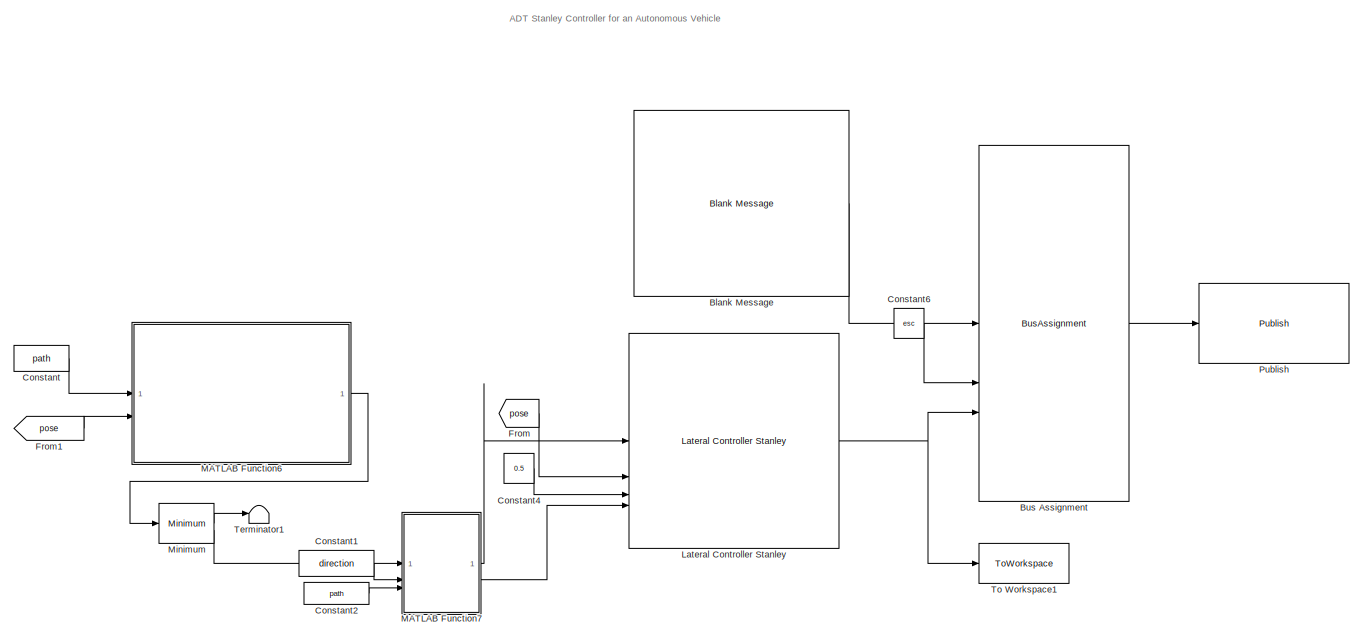
[diagram: root canvas - part 1/4, top center region]
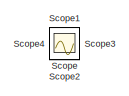
[diagram: root canvas - part 2/4, top left region]
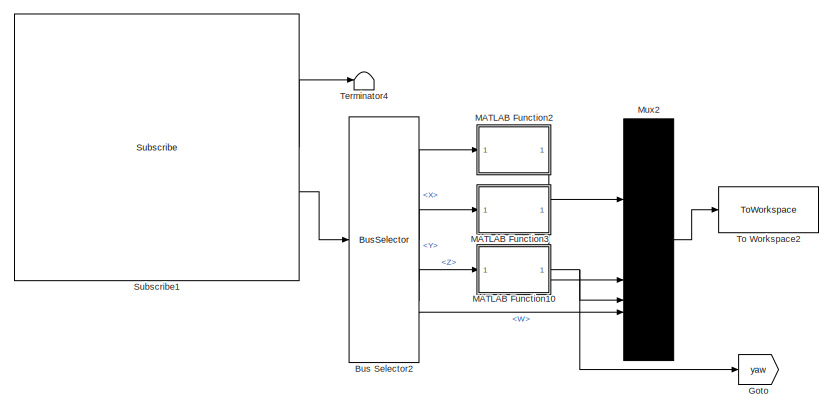
[diagram: root canvas - part 3/4, bottom right region]
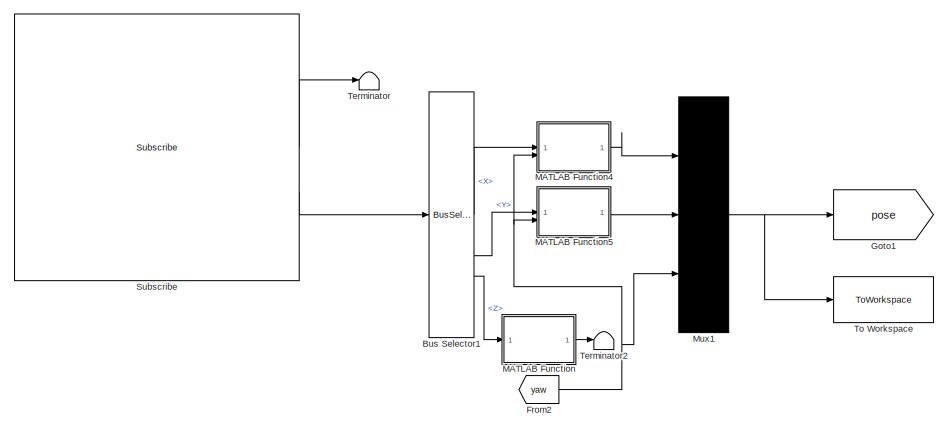
[diagram: root canvas - part 4/4, bottom center region]
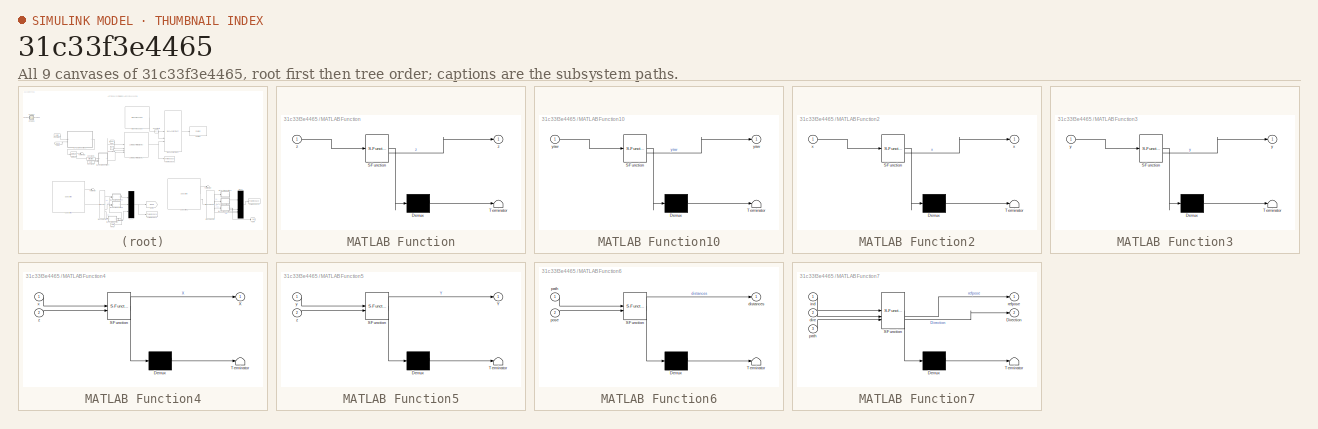
[diagram: thumbnail index - all 9 canvases of the model, root first then tree order]
MODEL slx_31c33f3e4465
KIND model
CONFIG AbsTol = auto
CONFIG EnableMultiTasking = off
CONFIG FixedStep = 0.001
CONFIG MaxStep = auto
CONFIG MinStep = auto
CONFIG PreLoadFcn = setUpModel\nclose
CONFIG RelTol = 1e-3
CONFIG SampleTimeConstraint = Unconstrained
CONFIG SolverName = VariableStepAuto
CONFIG StartTime = 0.0
CONFIG StopTime = inf
WORKSPACE source: mxarray member
WORKSPACE firstWarning = 0
WORKSPACE originalScenarioChecksum = 'F73A6DA3C723D3CA73A6F931B7A52A9C'
BLOCK [Reference] Blank Message  REF=robotlib/Blank Message
  LibrarySourceBlock = roslib/ROS/Blank Message
  SourceBlock = robotlib/Blank Message
  SourceType = ROS Blank Message
BLOCK [BusAssignment] Bus Assignment
  AssignedSignals = Linear.X,Angular.Z
BLOCK [BusSelector] Bus Selector1
  OutputSignals = Pose.Position.X,Pose.Position.Y,Pose.Orientation.Z
BLOCK [BusSelector] Bus Selector2
  OutputSignals = LinearAcceleration.X,LinearAcceleration.Y,Orientation.Z,Orientation.W
BLOCK [Constant] Constant
  SampleTime = 1/hz
  Value = path
BLOCK [Constant] Constant1
  SampleTime = 1/hz
  Value = direction
BLOCK [Constant] Constant2
  SampleTime = 1/hz
  Value = path
BLOCK [Constant] Constant4
  Value = 0.5
BLOCK [Constant] Constant6
  SampleTime = 1/hz
  Value = esc
BLOCK [From] From
  GotoTag = pose
BLOCK [From] From1
  GotoTag = pose
BLOCK [From] From2
  GotoTag = yaw
BLOCK [Goto] Goto
  GotoTag = yaw
BLOCK [Goto] Goto1
  GotoTag = pose
BLOCK [Reference] Lateral Controller Stanley  REF=drivingvehiclecontroller/Lateral Controller Stanley
  SourceBlock = drivingvehiclecontroller/Lateral Controller Stanley
  SourceType = Lateral Controller Stanley
BLOCK [SubSystem] MATLAB Function
  ErrorFcn = Stateflow.Translate.translate
  LibrarySourceBlock = simulink/User-Defined\nFunctions/MATLAB Function
  PermitHierarchicalResolution = ExplicitOnly
  SFBlockType = MATLAB Function
  TreatAsAtomicUnit = on
BLOCK [Demux] MATLAB Function/ Demux 
  Outputs = 1
BLOCK [S-Function] MATLAB Function/ SFunction 
  EnableBusSupport = on
  FunctionName = sf_sfun
  PortCounts = [1 2]
  SFcnIsStateOwnerBlock = off
  SFunctionDeploymentMode = off
  Tag = Stateflow S-Function 2
BLOCK [Terminator] MATLAB Function/ Terminator 
BLOCK [Outport] MATLAB Function/z
BLOCK [Inport] MATLAB Function/z 
BLOCK [SubSystem] MATLAB Function10
  ErrorFcn = Stateflow.Translate.translate
  LibrarySourceBlock = simulink/User-Defined\nFunctions/MATLAB Function
  PermitHierarchicalResolution = ExplicitOnly
  SFBlockType = MATLAB Function
  TreatAsAtomicUnit = on
BLOCK [Demux] MATLAB Function10/ Demux 
  Outputs = 1
BLOCK [S-Function] MATLAB Function10/ SFunction 
  EnableBusSupport = on
  FunctionName = sf_sfun
  PortCounts = [1 2]
  SFcnIsStateOwnerBlock = off
  SFunctionDeploymentMode = off
  Tag = Stateflow S-Function 3
BLOCK [Terminator] MATLAB Function10/ Terminator 
BLOCK [Outport] MATLAB Function10/yaw
BLOCK [Inport] MATLAB Function10/yaw 
BLOCK [SubSystem] MATLAB Function2
  ErrorFcn = Stateflow.Translate.translate
  LibrarySourceBlock = simulink/User-Defined\nFunctions/MATLAB Function
  PermitHierarchicalResolution = ExplicitOnly
  SFBlockType = MATLAB Function
  TreatAsAtomicUnit = on
BLOCK [Demux] MATLAB Function2/ Demux 
  Outputs = 1
BLOCK [S-Function] MATLAB Function2/ SFunction 
  EnableBusSupport = on
  FunctionName = sf_sfun
  PortCounts = [1 2]
  SFcnIsStateOwnerBlock = off
  SFunctionDeploymentMode = off
  Tag = Stateflow S-Function 4
BLOCK [Terminator] MATLAB Function2/ Terminator 
BLOCK [Outport] MATLAB Function2/x
BLOCK [Inport] MATLAB Function2/x 
BLOCK [SubSystem] MATLAB Function3
  ErrorFcn = Stateflow.Translate.translate
  LibrarySourceBlock = simulink/User-Defined\nFunctions/MATLAB Function
  PermitHierarchicalResolution = ExplicitOnly
  SFBlockType = MATLAB Function
  TreatAsAtomicUnit = on
BLOCK [Demux] MATLAB Function3/ Demux 
  Outputs = 1
BLOCK [S-Function] MATLAB Function3/ SFunction 
  EnableBusSupport = on
  FunctionName = sf_sfun
  PortCounts = [1 2]
  SFcnIsStateOwnerBlock = off
  SFunctionDeploymentMode = off
  Tag = Stateflow S-Function 11
BLOCK [Terminator] MATLAB Function3/ Terminator 
BLOCK [Outport] MATLAB Function3/y
BLOCK [Inport] MATLAB Function3/y 
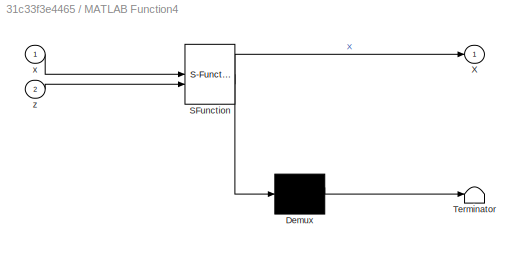
BLOCK [SubSystem] MATLAB Function4
  ErrorFcn = Stateflow.Translate.translate
  LibrarySourceBlock = simulink/User-Defined\nFunctions/MATLAB Function
  PermitHierarchicalResolution = ExplicitOnly
  SFBlockType = MATLAB Function
  TreatAsAtomicUnit = on
BLOCK [Demux] MATLAB Function4/ Demux 
  Outputs = 1
BLOCK [S-Function] MATLAB Function4/ SFunction 
  EnableBusSupport = on
  FunctionName = sf_sfun
  PortCounts = [2 2]
  SFcnIsStateOwnerBlock = off
  SFunctionDeploymentMode = off
  Tag = Stateflow S-Function 5
BLOCK [Terminator] MATLAB Function4/ Terminator 
BLOCK [Outport] MATLAB Function4/X
BLOCK [Inport] MATLAB Function4/x
BLOCK [Inport] MATLAB Function4/z
  Port = 2
BLOCK [SubSystem] MATLAB Function5
  ErrorFcn = Stateflow.Translate.translate
  LibrarySourceBlock = simulink/User-Defined\nFunctions/MATLAB Function
  PermitHierarchicalResolution = ExplicitOnly
  SFBlockType = MATLAB Function
  TreatAsAtomicUnit = on
BLOCK [Demux] MATLAB Function5/ Demux 
  Outputs = 1
BLOCK [S-Function] MATLAB Function5/ SFunction 
  EnableBusSupport = on
  FunctionName = sf_sfun
  PortCounts = [2 2]
  SFcnIsStateOwnerBlock = off
  SFunctionDeploymentMode = off
  Tag = Stateflow S-Function 6
BLOCK [Terminator] MATLAB Function5/ Terminator 
BLOCK [Outport] MATLAB Function5/Y
BLOCK [Inport] MATLAB Function5/y
BLOCK [Inport] MATLAB Function5/z
  Port = 2
BLOCK [SubSystem] MATLAB Function6
  ErrorFcn = Stateflow.Translate.translate
  LibrarySourceBlock = simulink/User-Defined\nFunctions/MATLAB Function
  PermitHierarchicalResolution = ExplicitOnly
  SFBlockType = MATLAB Function
  TreatAsAtomicUnit = on
BLOCK [Demux] MATLAB Function6/ Demux 
  Outputs = 1
BLOCK [S-Function] MATLAB Function6/ SFunction 
  EnableBusSupport = on
  FunctionName = sf_sfun
  PortCounts = [2 2]
  SFcnIsStateOwnerBlock = off
  SFunctionDeploymentMode = off
  Tag = Stateflow S-Function 7
BLOCK [Terminator] MATLAB Function6/ Terminator 
BLOCK [Outport] MATLAB Function6/distances
BLOCK [Inport] MATLAB Function6/path
BLOCK [Inport] MATLAB Function6/pose
  Port = 2
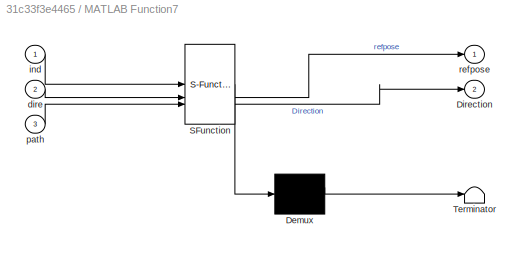
BLOCK [SubSystem] MATLAB Function7
  ErrorFcn = Stateflow.Translate.translate
  LibrarySourceBlock = simulink/User-Defined\nFunctions/MATLAB Function
  PermitHierarchicalResolution = ExplicitOnly
  SFBlockType = MATLAB Function
  TreatAsAtomicUnit = on
BLOCK [Demux] MATLAB Function7/ Demux 
  Outputs = 1
BLOCK [S-Function] MATLAB Function7/ SFunction 
  EnableBusSupport = on
  FunctionName = sf_sfun
  PortCounts = [3 3]
  SFcnIsStateOwnerBlock = off
  SFunctionDeploymentMode = off
  Tag = Stateflow S-Function 8
BLOCK [Terminator] MATLAB Function7/ Terminator 
BLOCK [Outport] MATLAB Function7/Direction
  Port = 2
BLOCK [Inport] MATLAB Function7/dire
  Port = 2
BLOCK [Inport] MATLAB Function7/ind
BLOCK [Inport] MATLAB Function7/path
  Port = 3
BLOCK [Outport] MATLAB Function7/refpose
BLOCK [Reference] Minimum  REF=dspstat3/Minimum
  SourceBlock = dspstat3/Minimum
  SourceType = Minimum
  UserDataPersistent = on
BLOCK [Mux] Mux1
  DisplayOption = bar
  Inputs = 3
BLOCK [Mux] Mux2
  DisplayOption = bar
BLOCK [Reference] Publish  REF=robotlib/Publish
  LibrarySourceBlock = roslib/ROS/Publish
  SourceBlock = robotlib/Publish
  SourceType = ROS Publish
BLOCK [Scope] Scope
  Floating = off
  IOType = viewer
  NumInputPorts = 1
  ScopeSpecificationString = Simulink.scopes.TimeScopeBlockCfg('CurrentConfiguration', extmgr.ConfigurationSet(extmgr.Configuration('Core','General UI',true),extmgr.Configuration('Core','Source UI',true),extmgr.Configuration('Sources','WiredSimulink',true),extmgr.Configuration('Visuals','Time Domain',true,'SerializedDisplays',{struct('MinYLimReal','0.80948','MaxYLimReal','29.31919','YLabelReal','','MinYLimMag','0.80948','MaxY...<+1395ch>
BLOCK [Scope] Scope1
  Floating = off
  IOType = viewer
  NumInputPorts = 1
  ScopeSpecificationString = Simulink.scopes.TimeScopeBlockCfg('CurrentConfiguration', extmgr.ConfigurationSet(extmgr.Configuration('Core','General UI',true),extmgr.Configuration('Core','Source UI',true),extmgr.Configuration('Sources','WiredSimulink',true,'DataLoggingVariableName','ScopeData1'),extmgr.Configuration('Visuals','Time Domain',true,'SerializedDisplays',{struct('MinYLimReal','-0.12918','MaxYLimReal','0.1179','YLabe...<+1411ch>
BLOCK [Scope] Scope2
  Floating = off
  IOType = viewer
  NumInputPorts = 1
  ScopeSpecificationString = Simulink.scopes.TimeScopeBlockCfg('CurrentConfiguration', extmgr.ConfigurationSet(extmgr.Configuration('Core','General UI',true),extmgr.Configuration('Core','Source UI',true),extmgr.Configuration('Sources','WiredSimulink',true,'DataLoggingVariableName','ScopeData2'),extmgr.Configuration('Visuals','Time Domain',true,'SerializedDisplays',{struct('MinYLimReal','-0.12487','MaxYLimReal','1.12387','YLab...<+1413ch>
BLOCK [Scope] Scope3
  Floating = off
  IOType = viewer
  NumInputPorts = 1
  ScopeSpecificationString = Simulink.scopes.TimeScopeBlockCfg('CurrentConfiguration', extmgr.ConfigurationSet(extmgr.Configuration('Core','General UI',true),extmgr.Configuration('Core','Source UI',true),extmgr.Configuration('Sources','WiredSimulink',true,'DataLoggingVariableName','ScopeData1'),extmgr.Configuration('Visuals','Time Domain',true,'SerializedDisplays',{struct('MinYLimReal','-0.125','MaxYLimReal','1.125','YLabelRe...<+1347ch>
BLOCK [Scope] Scope4
  Floating = off
  IOType = viewer
  NumInputPorts = 1
  ScopeSpecificationString = Simulink.scopes.TimeScopeBlockCfg('CurrentConfiguration', extmgr.ConfigurationSet(extmgr.Configuration('Core','General UI',true),extmgr.Configuration('Core','Source UI',true),extmgr.Configuration('Sources','WiredSimulink',true,'DataLoggingVariableName','ScopeData1'),extmgr.Configuration('Visuals','Time Domain',true,'SerializedDisplays',{struct('MinYLimReal','-56.25','MaxYLimReal','56.25','YLabelRe...<+1411ch>
BLOCK [Reference] Subscribe  REF=robotlib/Subscribe
  LibrarySourceBlock = roslib/ROS/Subscribe
  SourceBlock = robotlib/Subscribe
  SourceType = ROS Subscribe
BLOCK [Reference] Subscribe1  REF=robotlib/Subscribe
  LibrarySourceBlock = roslib/ROS/Subscribe
  SourceBlock = robotlib/Subscribe
  SourceType = ROS Subscribe
BLOCK [Terminator] Terminator
BLOCK [Terminator] Terminator1
BLOCK [Terminator] Terminator2
BLOCK [Terminator] Terminator4
BLOCK [ToWorkspace] To Workspace
  FixptAsFi = on
  MaxDataPoints = inf
  SampleTime = -1
  SaveFormat = Timeseries
  VariableName = simout
BLOCK [ToWorkspace] To Workspace1
  FixptAsFi = on
  MaxDataPoints = inf
  SampleTime = -1
  SaveFormat = Structure With Time
  VariableName = steering
BLOCK [ToWorkspace] To Workspace2
  FixptAsFi = on
  MaxDataPoints = inf
  SampleTime = -1
  SaveFormat = Structure With Time
  VariableName = acc_gyro
ANNOTATION (root): ADT Stanley Controller for an Autonomous Vehicle
LINE Blank Message:1 -> Bus Assignment:1
LINE Bus Assignment:1 -> Publish:1
LINE Bus Selector1:1 -> MATLAB Function4:1
LINE Bus Selector1:2 -> MATLAB Function5:1
LINE Bus Selector1:3 -> MATLAB Function:1
LINE Bus Selector2:1 -> MATLAB Function2:1
LINE Bus Selector2:2 -> MATLAB Function3:1
LINE Bus Selector2:3 -> MATLAB Function10:1
LINE Bus Selector2:4 -> Mux2:4
LINE Constant1:1 -> MATLAB Function7:2
LINE Constant2:1 -> MATLAB Function7:3
LINE Constant4:1 -> Lateral Controller Stanley:3
LINE Constant6:1 -> Bus Assignment:2
LINE Constant:1 -> MATLAB Function6:1
LINE From1:1 -> MATLAB Function6:2
NET From2:1 -> MATLAB Function4:2, MATLAB Function5:2, Mux1:3
LINE From:1 -> Lateral Controller Stanley:2
NET Lateral Controller Stanley:1 -> Bus Assignment:3, To Workspace1:1
NET MATLAB Function10:1 -> Goto:1, Mux2:3
LINE MATLAB Function2:1 -> Mux2:1
LINE MATLAB Function3:1 -> Mux2:2
LINE MATLAB Function4:1 -> Mux1:1
LINE MATLAB Function5:1 -> Mux1:2
LINE MATLAB Function6:1 -> Minimum:1
LINE MATLAB Function7:1 -> Lateral Controller Stanley:1
LINE MATLAB Function7:2 -> Lateral Controller Stanley:4
LINE MATLAB Function:1 -> Terminator2:1
LINE Minimum:1 -> Terminator1:1
LINE Minimum:2 -> MATLAB Function7:1
NET Mux1:1 -> Goto1:1, To Workspace:1
LINE Mux2:1 -> To Workspace2:1
LINE Subscribe1:1 -> Terminator4:1
LINE Subscribe1:2 -> Bus Selector2:1
LINE Subscribe:1 -> Terminator:1
LINE Subscribe:2 -> Bus Selector1:1
note: NET lines group one-source signal fan-out (src -> all destinations, sorted); 1:1 wires keep LINE
CHART MATLAB Function states=1 transitions=1
  STATE_LABEL 'eML_blk_kernel()'
  STATE_LABEL 'SCRIPT:\nfunction z = fcn(z)\nz = z*180;\nif (z < 0)\n    z = 180 + (180 +z);\nelse\nend\nend'
CHART MATLAB Function10 states=1 transitions=1
  STATE_LABEL 'eML_blk_kernel()'
  STATE_LABEL 'SCRIPT:\nfunction yaw = fcn(yaw)\nyaw = 360-yaw;\nyaw = yaw*pi/180;\nend\n'
CHART MATLAB Function2 states=1 transitions=1
  STATE_LABEL 'eML_blk_kernel()'
  STATE_LABEL 'SCRIPT:\nfunction x = fcn(x)\nx = x - (0);\nend\n'
CHART MATLAB Function4 states=1 transitions=1
  STATE_LABEL 'eML_blk_kernel()'
  STATE_LABEL 'SCRIPT:\nfunction X = fcn(x,z)\n\nX = x + 0.330*cos(z);\n\nend\n'
CHART MATLAB Function5 states=1 transitions=1
  STATE_LABEL 'eML_blk_kernel()'
  STATE_LABEL 'SCRIPT:\nfunction Y = fcn(y,z)\nY = y + 0.330*sin(z);\nend'
CHART MATLAB Function6 states=1 transitions=1
  STATE_LABEL 'eML_blk_kernel()'
  STATE_LABEL 'SCRIPT:\nfunction distances  = nearestPose(path, pose)\n    % path: Nx3 matrix containing the x, y, and heading of the waypoints in the path\n    % current_pose: 1x3 vector containing the x, y, and heading of the current pose of the vehicle\n    % nearest_pose: 1x3 vector containing the x, y, and heading of the nearest pose on the path\n    % nearest_index: index of the nearest pose on the path\n    \n  ...<+380ch>'
CHART MATLAB Function7 states=1 transitions=1
  STATE_LABEL 'eML_blk_kernel()'
  STATE_LABEL 'SCRIPT:\nfunction [refpose,Direction]= fcn(ind,dire,path)\n\nDirection = dire(ind);\nrefpose = path(ind,:);\nend\n'
CHART MATLAB Function3 states=1 transitions=1
  STATE_LABEL 'eML_blk_kernel()'
  STATE_LABEL 'SCRIPT:\nfunction y = fcn(y)\ny = y - (0);\nend\n'
CHART  states=0 transitions=0
CHART  states=0 transitions=0
CHART  states=0 transitions=0
CHART  states=0 transitions=0
CHART  states=0 transitions=0
CHART  states=0 transitions=0
CHART  states=0 transitions=0
CHART  states=0 transitions=0
